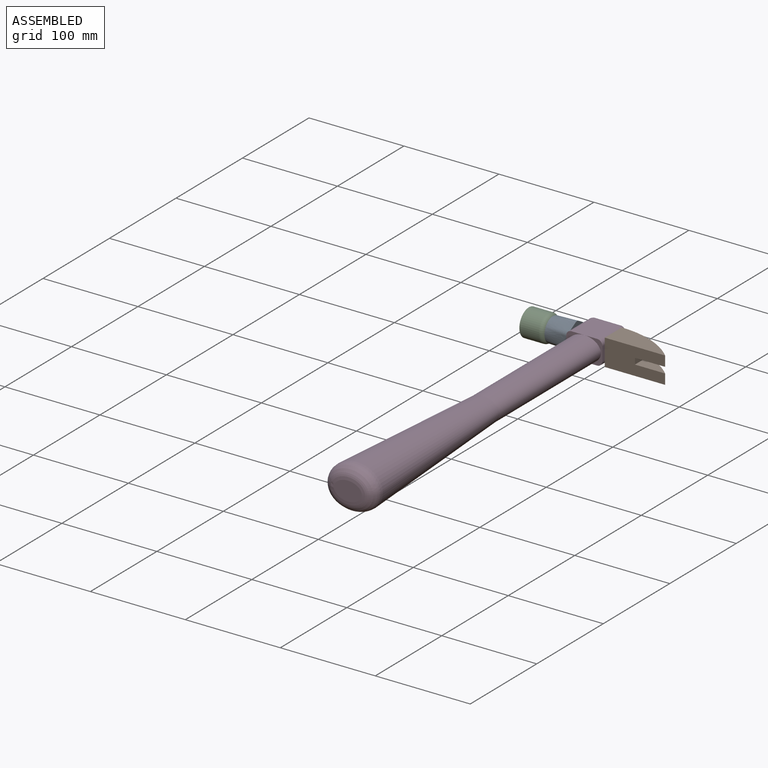
[diagram: assembled view]
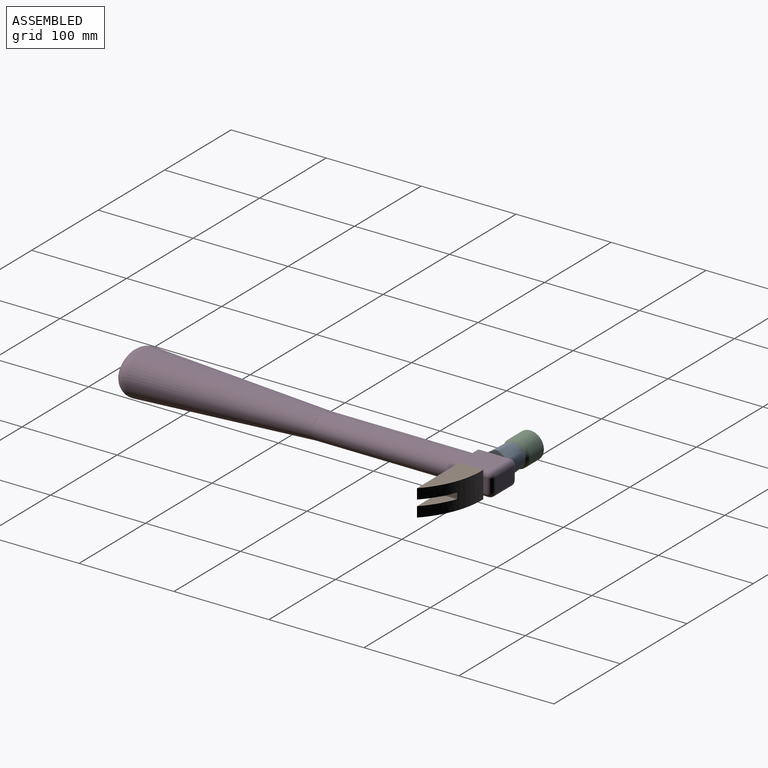
[diagram: assembled view, second angle]
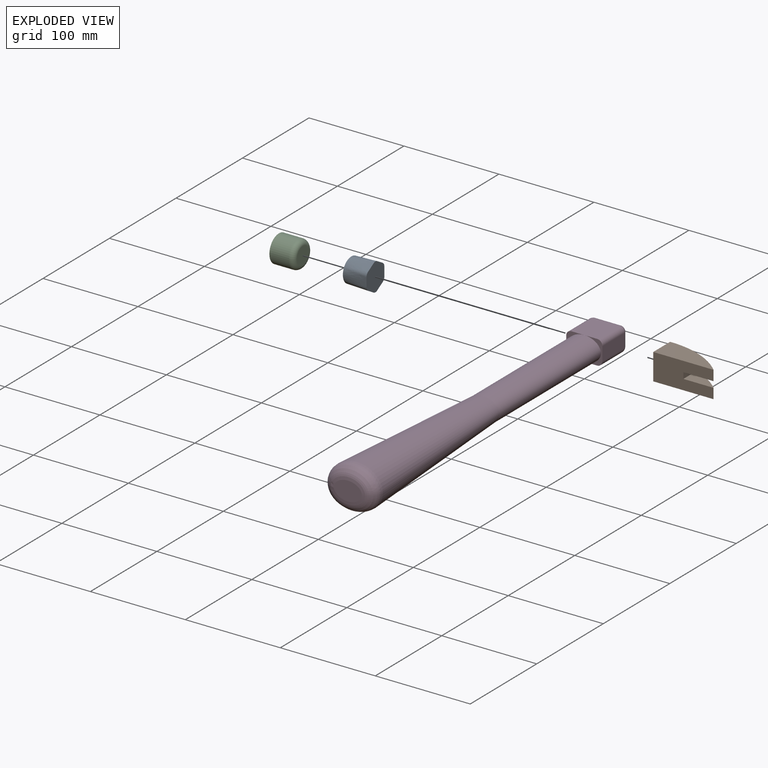
[diagram: exploded view]
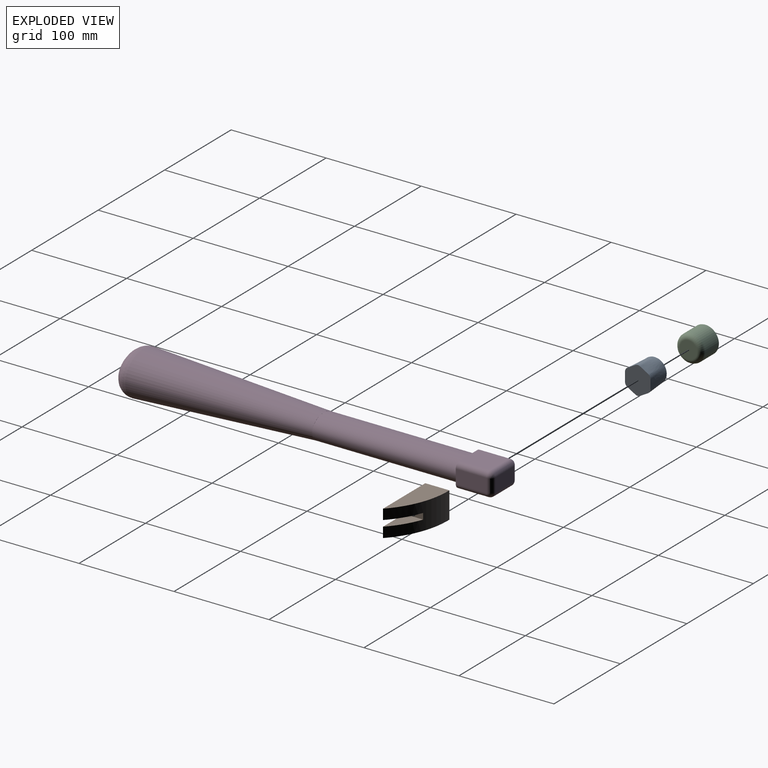
[diagram: exploded view, second angle]
ASSEMBLY  parts=4 mates=3
PART A: 14 faces, bbox 31.4x27.2x27.5 mm
  f0: plane 25.4x25.4mm, normal (0,0,1), area 506.7mm2, adj f2,f3,f4,f5,f6,f7
  f1: plane 29.52x26.93mm, normal (0,0,-1), area 615.4mm2, adj f2,f3,f4,f5,f6,f7,f8,f9
  f2: bspline ~25.4x13.42mm, area 293.6mm2, adj f0,f1,f12,f13
  f3: bspline ~25.4x15.49mm, area 293.6mm2, adj f0,f1,f11,f12
  f4: bspline ~25.4x13.42mm, area 293.6mm2, adj f0,f1,f10,f11
  f5: bspline ~25.4x13.42mm, area 293.6mm2, adj f0,f1,f9,f10
  f6: bspline ~25.4x15.49mm, area 293.6mm2, adj f0,f1,f8,f9
  f7: bspline ~25.4x13.42mm, area 293.6mm2, adj f0,f1,f8,f13
  f8: bspline ~27.4x4.55mm, area 51.9mm2, adj f1,f6,f7
  f9: bspline ~27.4x4.55mm, area 51.9mm2, adj f1,f5,f6
  f10: bspline ~27.4x5.26mm, area 51.9mm2, adj f1,f4,f5
  f11: bspline ~27.4x4.55mm, area 51.9mm2, adj f1,f3,f4
  f12: bspline ~27.4x4.55mm, area 51.9mm2, adj f1,f2,f3
  f13: bspline ~27.4x5.26mm, area 51.9mm2, adj f1,f2,f7
PART B: 8 faces, bbox 63.5x27.9x25.4 mm
  f0: plane 63.5x27.94mm, normal (0,0,-1), area 1572.6mm2, adj f1,f2,f3,f4,f5,f6,f7
  f1: cylinder r=88.9mm len=63.5mm, axis (0,1,0), area 1721.3mm2, adj f0,f2,f3,f4,f5,f6,f7
  f2: plane 27.94x25.4mm, normal (-1,0,0), area 709.7mm2, adj f0,f1,f3,f4
  f3: plane 63.5x25.41mm, normal (0,-1,0), area 1120.8mm2, adj f0,f1,f2
  f4: plane 63.5x25.41mm, normal (0,1,0), area 1120.8mm2, adj f0,f1,f2
  f5: plane 31.75x20.02mm, normal (0,-1,0), area 368.1mm2, adj f0,f1,f7
  f6: plane 31.75x20.02mm, normal (0,1,0), area 368.1mm2, adj f0,f1,f7
  f7: plane 20.02x6.35mm, normal (1,0,0), area 127.1mm2, adj f0,f1,f5,f6
PART C: 4 faces, bbox 30.8x30.8x25.4 mm
  f0: cylinder r=14.22mm len=28.45mm, axis (0,0,1), area 1816mm2, adj f1,f3
  f1: plane 28.45x28.45mm, normal (0,0,-1), area 635.6mm2, adj f0
  f2: plane 18.29x18.29mm, normal (0,0,1), area 262.7mm2, adj f3
  f3: torus R=9.14mm, axis (0,0,-1), area 620.6mm2, adj f0,f2
PART D: 25 faces, bbox 58.7x396.2x49.2 mm
  f0: extruded ~152.4x34.92mm, area 14531.3mm2, adj f1,f2,f5,f11
  f1: plane 37.34x15.15mm, normal (0,-1,0), area 3mm2, adj f0,f3
  f2: plane 37.38x15.21mm, normal (0,1,0), area 3mm2, adj f0,f3
  f3: bspline ~189.84x54.76mm, area 24067.1mm2, adj f1,f2,f12
  f4: plane 29.46x19.94mm, normal (0,-1,0), area 459.8mm2, adj f12
  f5: plane 25.4x19.05mm, normal (0,-1,0), area 122.5mm2, adj f0,f6,f7,f9,f15,f24
  f6: plane 32.6x14.4mm, normal (-1,0,0), area 469.4mm2, adj f5,f15,f21,f24
  f7: plane 32.6x27.1mm, normal (0,0,1), area 883.4mm2, adj f5,f11,f18,f22,f24
  f8: plane 32.6x14.4mm, normal (1,0,0), area 469.4mm2, adj f11,f13,f17,f18
  f9: plane 32.6x27.1mm, normal (0,0,-1), area 883.4mm2, adj f5,f11,f13,f15,f16
  f10: plane 27.1x14.4mm, normal (0,1,0), area 390.2mm2, adj f16,f17,f21,f22
  f11: plane 25.4x19.05mm, normal (0,-1,0), area 122.5mm2, adj f0,f7,f8,f9,f13,f18
  f12: bspline ~56.24x46.71mm, area 2678.4mm2, adj f3,f4
  f13: cylinder r=5.5mm len=32.6mm, axis (0,1,0), area 281.7mm2, adj f8,f9,f11,f14
  f14: sphere r=5.5mm, area 30.3mm2, adj f13,f16,f17
  f15: cylinder r=5.5mm len=32.6mm, axis (0,-1,0), area 281.7mm2, adj f5,f6,f9,f19
  f16: cylinder r=5.5mm len=27.1mm, axis (1,0,0), area 234.1mm2, adj f9,f10,f14,f19
  f17: cylinder r=5.5mm len=14.4mm, axis (0,0,1), area 124.4mm2, adj f8,f10,f14,f20
  f18: cylinder r=5.5mm len=32.6mm, axis (0,-1,0), area 281.7mm2, adj f7,f8,f11,f20
  f19: sphere r=5.5mm, area 64.8mm2, adj f15,f16,f21
  f20: sphere r=5.5mm, area 30.3mm2, adj f17,f18,f22
  f21: cylinder r=5.5mm len=14.4mm, axis (0,0,-1), area 124.4mm2, adj f6,f10,f19,f23
  f22: cylinder r=5.5mm len=27.1mm, axis (-1,0,0), area 234.1mm2, adj f7,f10,f20,f23
  f23: sphere r=5.5mm, area 64.8mm2, adj f21,f22,f24
  f24: cylinder r=5.5mm len=32.6mm, axis (0,1,0), area 281.7mm2, adj f5,f6,f7,f23
PLACE A rot(axis=(0,-1,0),90deg) t=(-19.05,16.3,0)mm
PLACE B rot(axis=(-1,0,0),90deg) t=(82.55,3.6,-13.97)mm
PLACE C rot(axis=(0.71,0,0.71),180deg) t=(-44.45,16.3,0)mm
PLACE D at identity
MATE fastened B.f2 <-> D.f8  axis (-1,0,0) through (19.05,16.3,0)mm
MATE fastened A.f1 <-> D.f6  axis (1,0,0) through (-19.05,16.3,0)mm
MATE fastened C.f0 <-> A.f0  axis (-1,0,0) through (-44.45,16.3,0)mm
